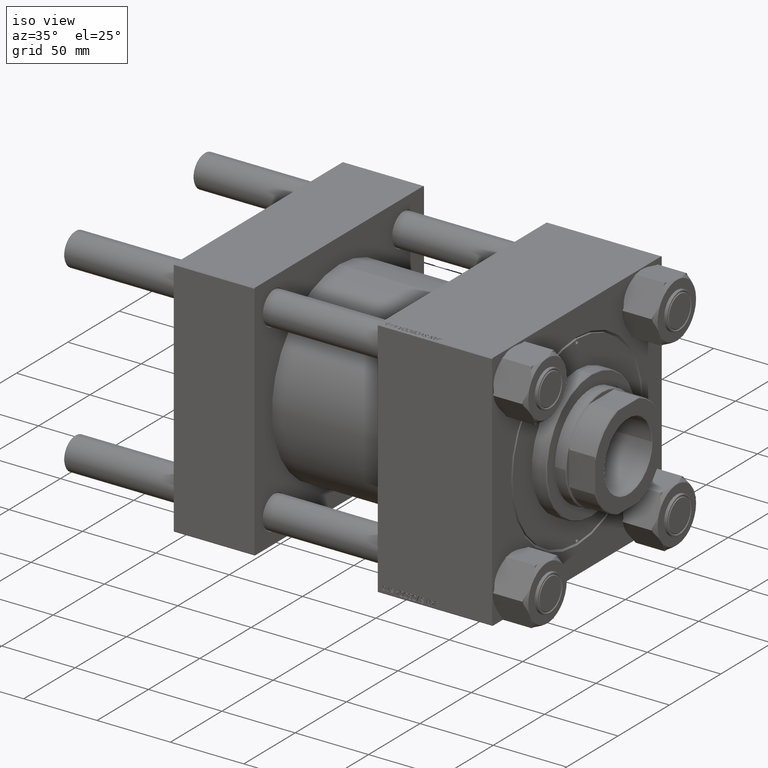
[diagram: clean part render]
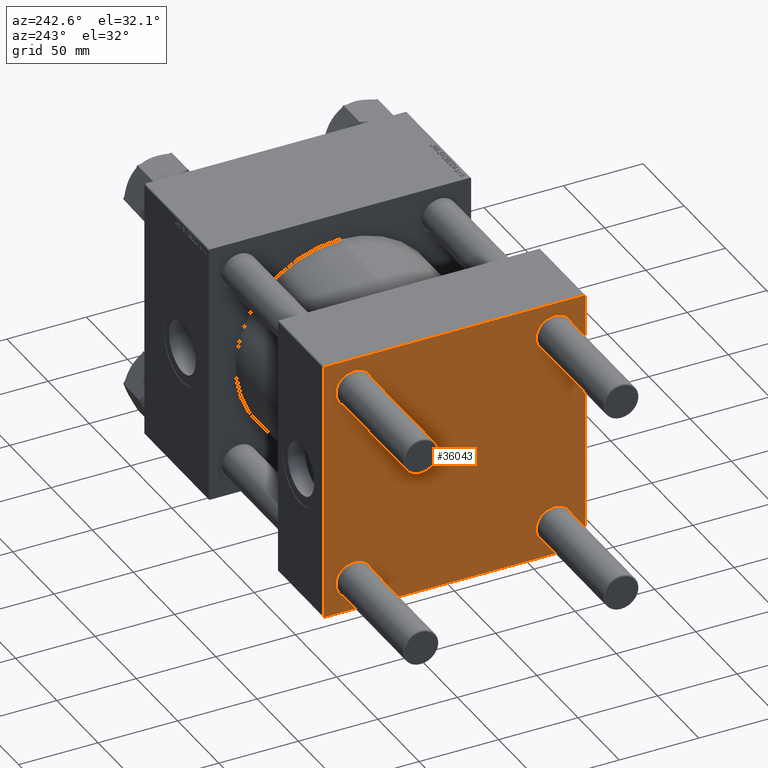
[diagram: tour spotlight — one face highlighted and labeled with its STEP entity id]
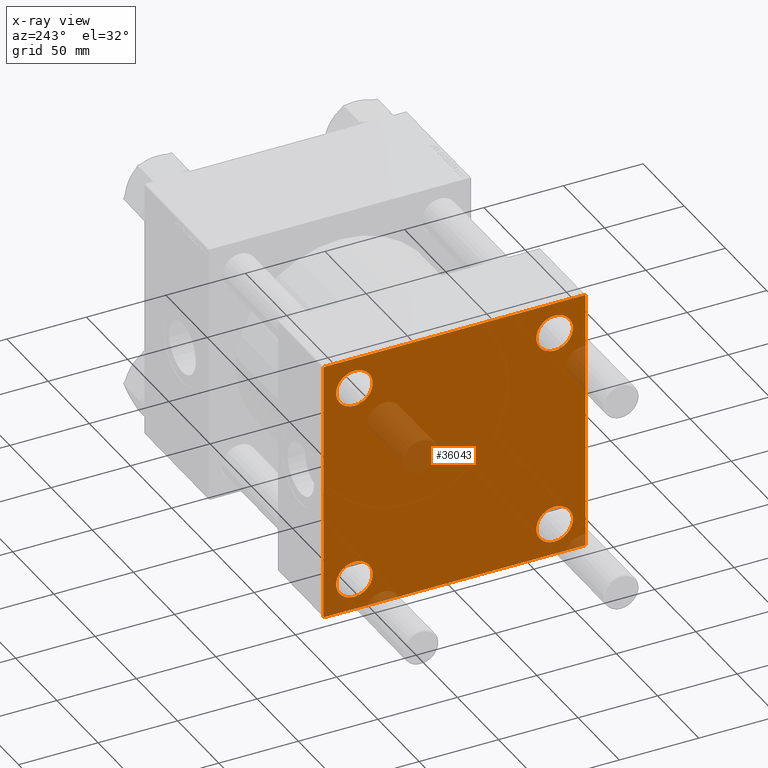
[diagram: x-ray of the same camera — body ghosted, this tour face saturated]
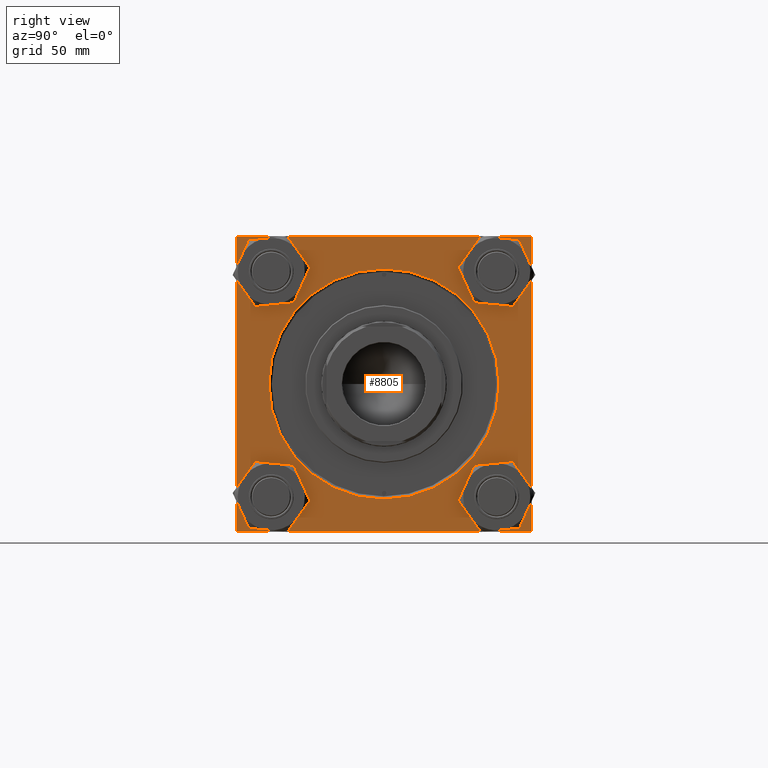
[diagram: tour spotlight — one face highlighted and labeled with its STEP entity id]
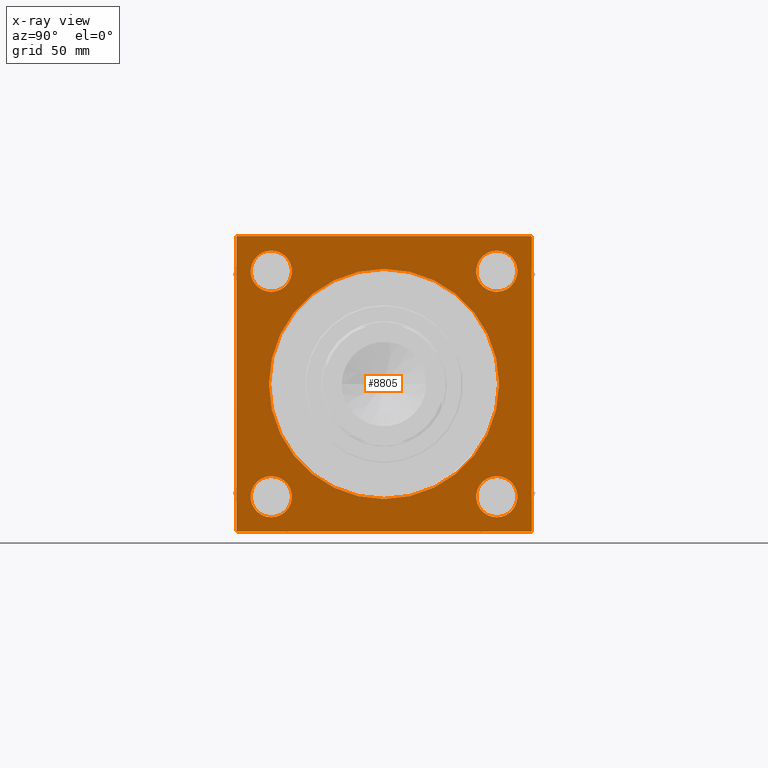
[diagram: x-ray of the same camera — body ghosted, this tour face saturated]
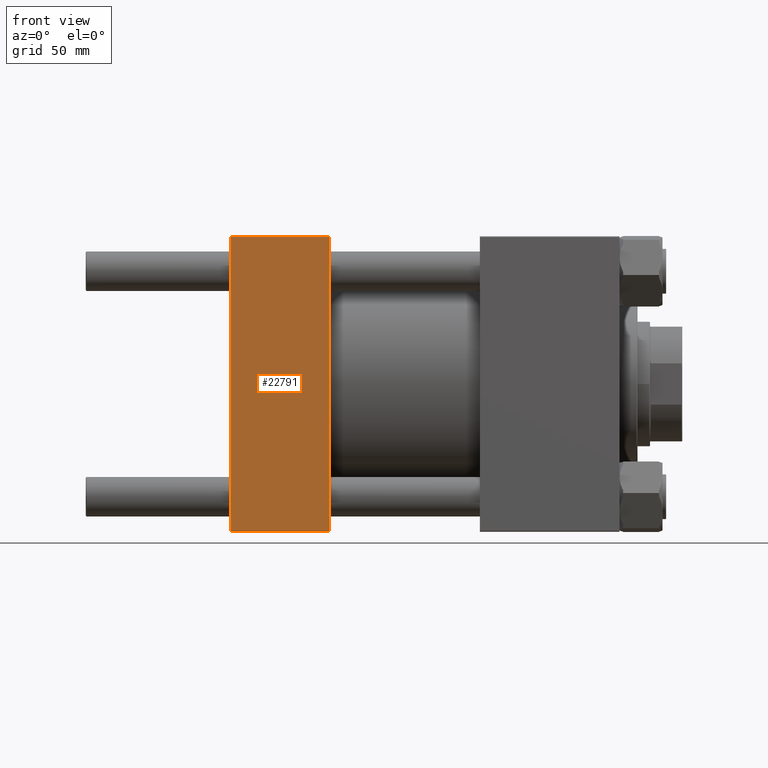
[diagram: tour spotlight — one face highlighted and labeled with its STEP entity id]
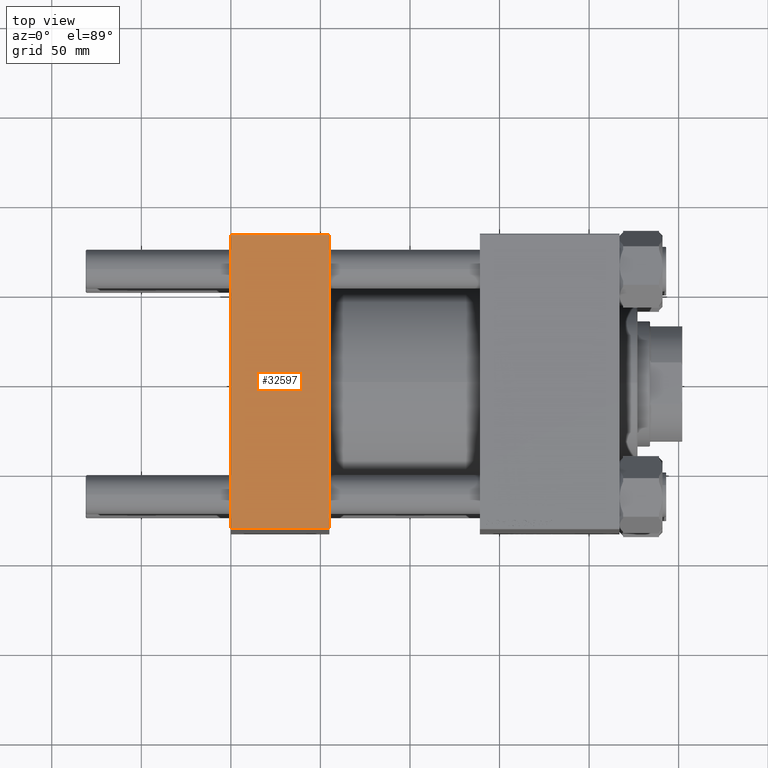
[diagram: tour spotlight — one face highlighted and labeled with its STEP entity id]
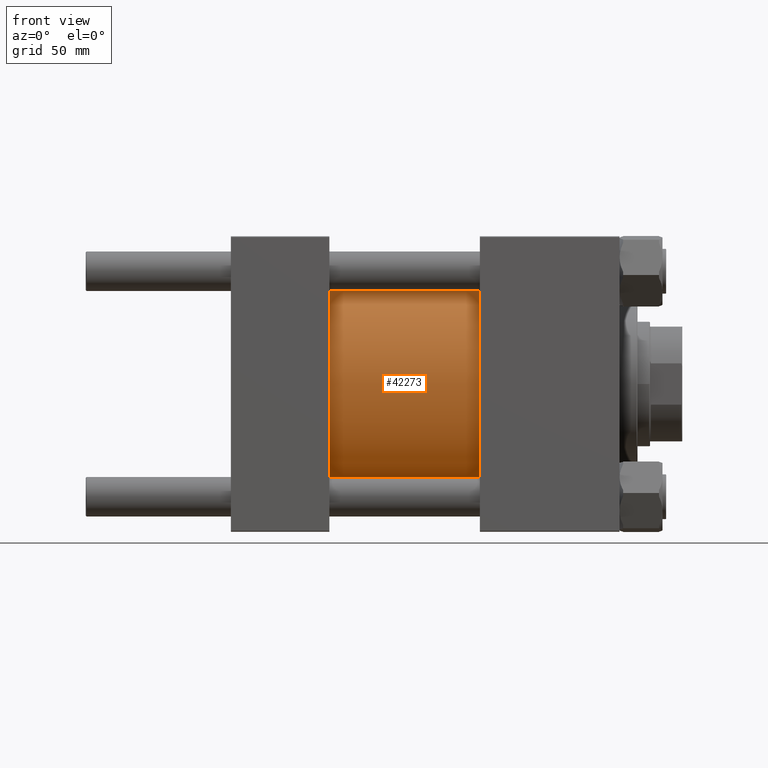
[diagram: tour spotlight — one face highlighted and labeled with its STEP entity id]
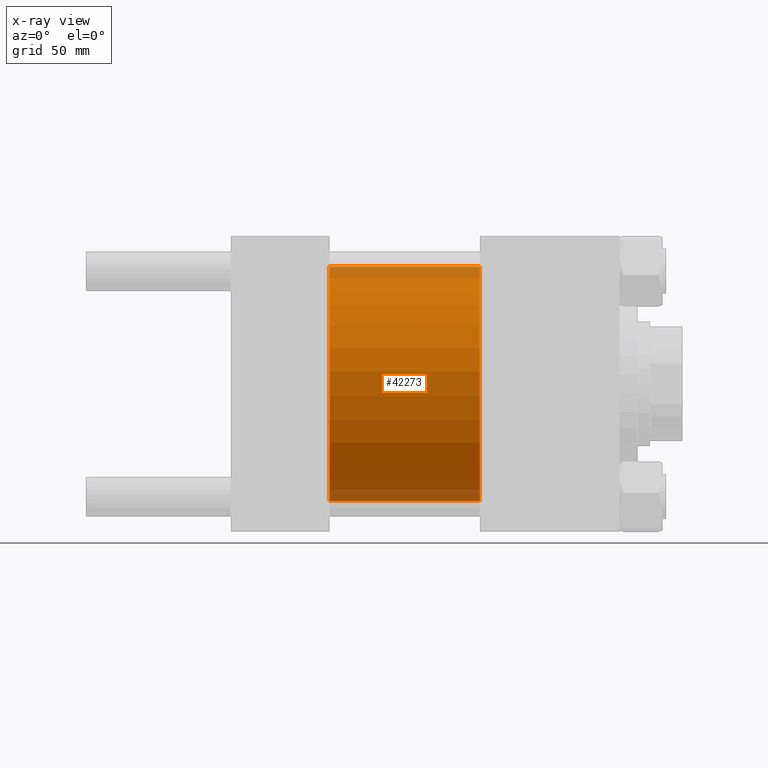
[diagram: x-ray of the same camera — body ghosted, this tour face saturated]
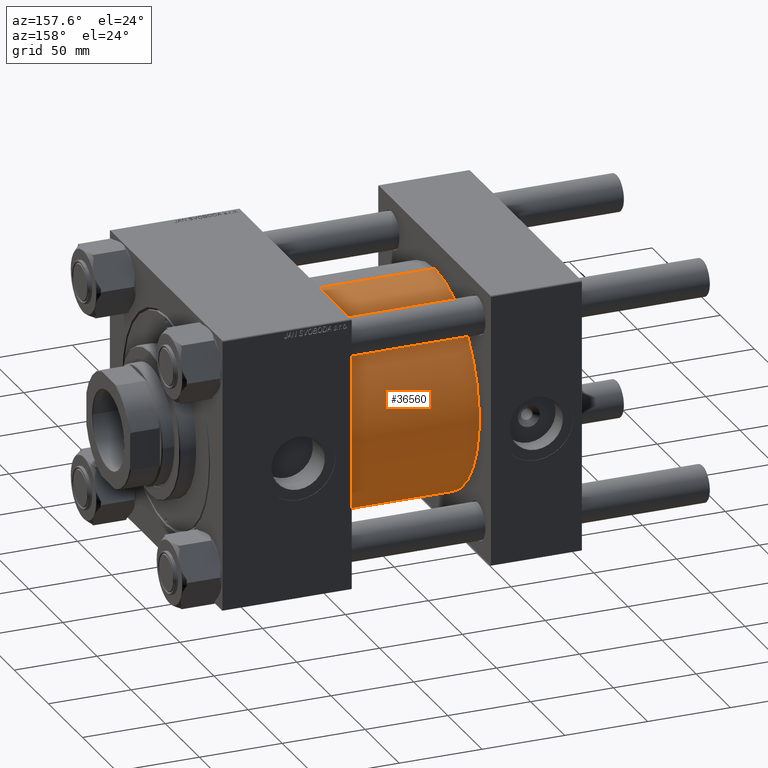
[diagram: tour spotlight — one face highlighted and labeled with its STEP entity id]
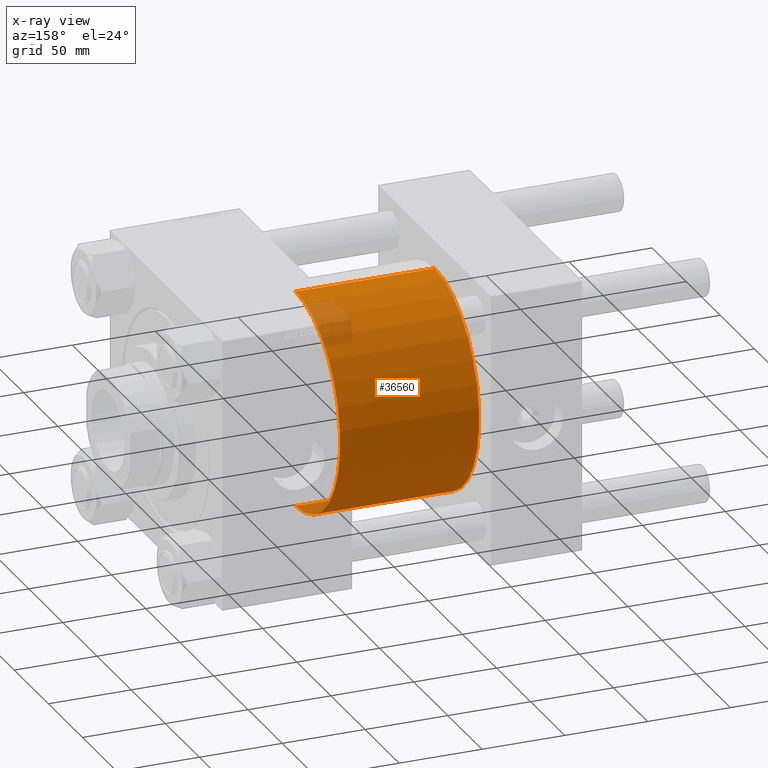
[diagram: x-ray of the same camera — body ghosted, this tour face saturated]
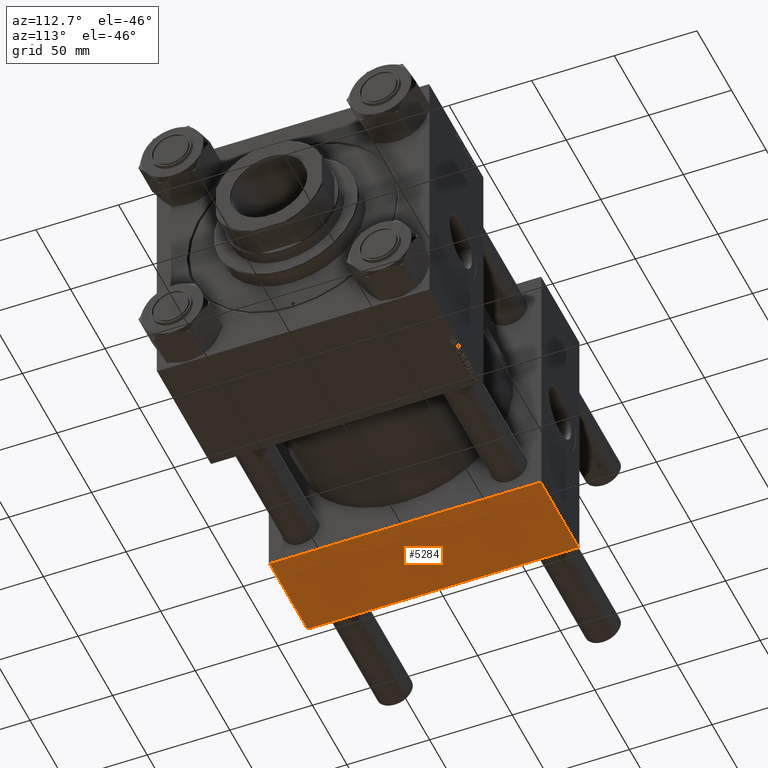
[diagram: tour spotlight — one face highlighted and labeled with its STEP entity id]
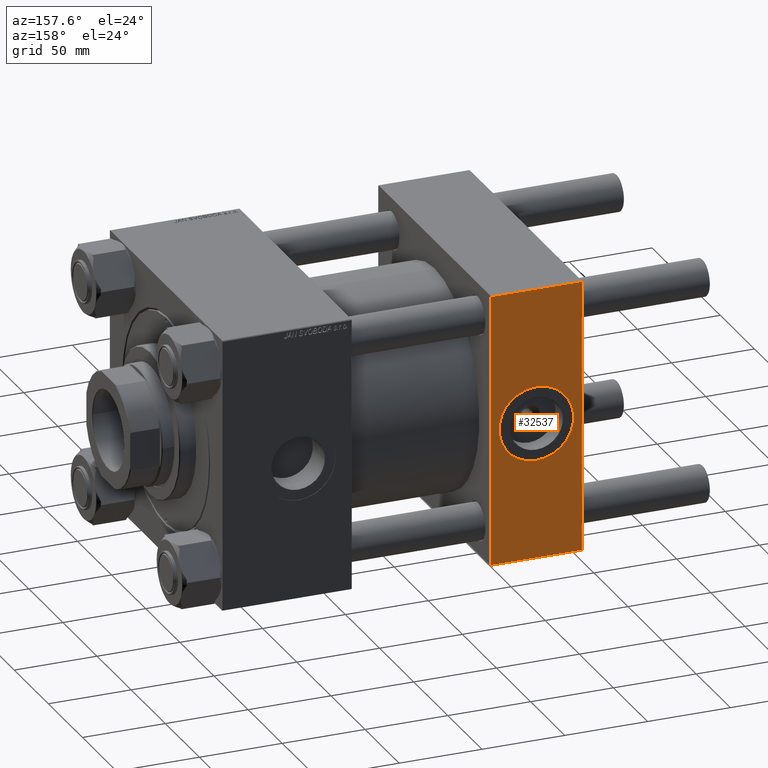
[diagram: tour spotlight — one face highlighted and labeled with its STEP entity id]
A machine part: a face-by-face anatomy tour. The part has 1188 B-rep faces; the first image is the clean iso view, then the 8 largest visible faces are spotlighted one at a time (largest first), each with its STEP entity span.

Face 1 — auxiliary view, entity #36043. An x-ray twin of the same camera follows (body ghosted, this face saturated) — the face is partly hidden behind the body. In plain terms, the highlighted planar face has unit normal (-1, 0, 0).
Definition (entity closure, byte-faithful):
#1214 = ORIENTED_EDGE ( 'NONE', *, *, #8347, .T. ) ;
#1446 = DIRECTION ( 'NONE',  ( 1.000000000000000000, -0.000000000000000000, -0.000000000000000000 ) ) ;
#1910 = CARTESIAN_POINT ( 'NONE',  ( 0.000000000000000000, -62.94999999999998153, -51.45000000000000995 ) ) ;
#1998 = DIRECTION ( 'NONE',  ( 1.000000000000000000, -0.000000000000000000, -0.000000000000000000 ) ) ;
#2589 = CARTESIAN_POINT ( 'NONE',  ( 0.000000000000000000, -62.94999999999998153, -62.95000000000001705 ) ) ;
#2924 = CARTESIAN_POINT ( 'NONE',  ( 0.000000000000000000, -62.94999999999998153, 51.45000000000000995 ) ) ;
#3281 = DIRECTION ( 'NONE',  ( 0.000000000000000000, 0.000000000000000000, 1.000000000000000000 ) ) ;
#3739 = ORIENTED_EDGE ( 'NONE', *, *, #32744, .T. ) ;
#3994 = EDGE_CURVE ( 'NONE', #21854, #22511, #24224, .T. ) ;
#4232 = VERTEX_POINT ( 'NONE', #36387 ) ;
#4570 = EDGE_CURVE ( 'NONE', #22418, #6643, #9875, .T. ) ;
#5291 = ORIENTED_EDGE ( 'NONE', *, *, #40483, .T. ) ;
#5365 = FACE_BOUND ( 'NONE', #42176, .T. ) ;
#5623 = CARTESIAN_POINT ( 'NONE',  ( 0.000000000000000000, 0.000000000000000000, 0.000000000000000000 ) ) ;
#6643 = VERTEX_POINT ( 'NONE', #1910 ) ;
#6944 = ORIENTED_EDGE ( 'NONE', *, *, #3994, .T. ) ;
#7158 = EDGE_CURVE ( 'NONE', #6643, #22418, #8310, .T. ) ;
#7211 = DIRECTION ( 'NONE',  ( 0.000000000000000000, -1.682156097916903588E-16, -1.000000000000000000 ) ) ;
#7260 = AXIS2_PLACEMENT_3D ( 'NONE', #24504, #35722, #28062 ) ;
#8250 = EDGE_CURVE ( 'NONE', #29769, #15652, #49880, .T. ) ;
#8310 = CIRCLE ( 'NONE', #18058, 11.50000000000001066 ) ;
#8347 = EDGE_CURVE ( 'NONE', #22511, #4232, #13288, .T. ) ;
#8629 = LINE ( 'NONE', #27997, #41127 ) ;
#8651 = CARTESIAN_POINT ( 'NONE',  ( 0.000000000000000000, 62.95000000000000284, -62.95000000000000284 ) ) ;
#8849 = CIRCLE ( 'NONE', #16180, 11.50000000000001066 ) ;
#9232 = VERTEX_POINT ( 'NONE', #14682 ) ;
#9336 = EDGE_CURVE ( 'NONE', #15116, #27988, #31989, .T. ) ;
#9875 = CIRCLE ( 'NONE', #16409, 11.50000000000001066 ) ;
#9928 = ORIENTED_EDGE ( 'NONE', *, *, #26298, .F. ) ;
#9930 = CARTESIAN_POINT ( 'NONE',  ( 0.000000000000000000, 62.95000000000000284, 62.95000000000000284 ) ) ;
#10330 = VERTEX_POINT ( 'NONE', #18075 ) ;
#10477 = ORIENTED_EDGE ( 'NONE', *, *, #4570, .T. ) ;
#10790 = LINE ( 'NONE', #34742, #38770 ) ;
#11113 = DIRECTION ( 'NONE',  ( 1.000000000000000000, -0.000000000000000000, -0.000000000000000000 ) ) ;
#11631 = DIRECTION ( 'NONE',  ( 1.000000000000000000, -0.000000000000000000, -0.000000000000000000 ) ) ;
#11895 = VERTEX_POINT ( 'NONE', #29440 ) ;
#12050 = CARTESIAN_POINT ( 'NONE',  ( 0.000000000000000000, 82.00000000000005684, 82.50000000000002842 ) ) ;
#12191 = DIRECTION ( 'NONE',  ( -0.000000000000000000, -0.7071067811865474617, -0.7071067811865474617 ) ) ;
#12784 = ORIENTED_EDGE ( 'NONE', *, *, #20898, .T. ) ;
#13288 = LINE ( 'NONE', #47215, #49111 ) ;
#13289 = FACE_OUTER_BOUND ( 'NONE', #45656, .T. ) ;
#13500 = DIRECTION ( 'NONE',  ( 0.000000000000000000, 0.7071067811865474617, -0.7071067811865474617 ) ) ;
#14682 = CARTESIAN_POINT ( 'NONE',  ( 0.000000000000000000, 62.95000000000000284, 51.44999999999999574 ) ) ;
#15092 = CARTESIAN_POINT ( 'NONE',  ( 0.000000000000000000, 62.95000000000000284, -74.45000000000001705 ) ) ;
#15116 = VERTEX_POINT ( 'NONE', #19452 ) ;
#15366 = EDGE_LOOP ( 'NONE', ( #33849, #10477 ) ) ;
#15652 = VERTEX_POINT ( 'NONE', #2924 ) ;
#16180 = AXIS2_PLACEMENT_3D ( 'NONE', #38162, #11631, #38421 ) ;
#16307 = VERTEX_POINT ( 'NONE', #49670 ) ;
#16409 = AXIS2_PLACEMENT_3D ( 'NONE', #22844, #11113, #27158 ) ;
#17062 = ORIENTED_EDGE ( 'NONE', *, *, #45441, .T. ) ;
#17553 = DIRECTION ( 'NONE',  ( 0.000000000000000000, 0.000000000000000000, 1.000000000000000000 ) ) ;
#18058 = AXIS2_PLACEMENT_3D ( 'NONE', #2589, #29131, #49284 ) ;
#18075 = CARTESIAN_POINT ( 'NONE',  ( 0.000000000000000000, -81.99999999999997158, 82.50000000000001421 ) ) ;
#19143 = VERTEX_POINT ( 'NONE', #46018 ) ;
#19452 = CARTESIAN_POINT ( 'NONE',  ( 0.000000000000000000, -82.00000000000000000, -82.50000000000000000 ) ) ;
#19805 = EDGE_CURVE ( 'NONE', #11895, #25764, #19935, .T. ) ;
#19935 = CIRCLE ( 'NONE', #34585, 11.50000000000001066 ) ;
#20263 = CARTESIAN_POINT ( 'NONE',  ( 0.000000000000000000, -82.25000000000115108, -82.24999999999886313 ) ) ;
#20310 = VECTOR ( 'NONE', #41319, 1000.000000000000000 ) ;
#20898 = EDGE_CURVE ( 'NONE', #15652, #29769, #40317, .T. ) ;
#20945 = FACE_BOUND ( 'NONE', #36845, .T. ) ;
#21275 = VERTEX_POINT ( 'NONE', #49001 ) ;
#21408 = CARTESIAN_POINT ( 'NONE',  ( 0.000000000000000000, 82.25000000000002842, 82.25000000000002842 ) ) ;
#21718 = LINE ( 'NONE', #37771, #48636 ) ;
#21854 = VERTEX_POINT ( 'NONE', #12050 ) ;
#22389 = EDGE_CURVE ( 'NONE', #9232, #21275, #49340, .T. ) ;
#22418 = VERTEX_POINT ( 'NONE', #50435 ) ;
#22511 = VERTEX_POINT ( 'NONE', #42292 ) ;
#22844 = CARTESIAN_POINT ( 'NONE',  ( 0.000000000000000000, -62.94999999999998153, -62.95000000000001705 ) ) ;
#23030 = LINE ( 'NONE', #45982, #44820 ) ;
#23430 = EDGE_CURVE ( 'NONE', #4232, #19143, #8629, .T. ) ;
#24224 = LINE ( 'NONE', #21408, #39175 ) ;
#24265 = DIRECTION ( 'NONE',  ( 1.000000000000000000, -0.000000000000000000, -0.000000000000000000 ) ) ;
#24504 = CARTESIAN_POINT ( 'NONE',  ( 0.000000000000000000, 62.95000000000000284, 62.95000000000000284 ) ) ;
#24769 = FACE_BOUND ( 'NONE', #15366, .T. ) ;
#25172 = CIRCLE ( 'NONE', #7260, 11.50000000000001066 ) ;
#25489 = DIRECTION ( 'NONE',  ( 0.000000000000000000, 0.000000000000000000, 1.000000000000000000 ) ) ;
#25758 = CARTESIAN_POINT ( 'NONE',  ( 0.000000000000000000, 82.50000000000002842, 82.50000000000002842 ) ) ;
#25764 = VERTEX_POINT ( 'NONE', #15092 ) ;
#26298 = EDGE_CURVE ( 'NONE', #16307, #27988, #10790, .T. ) ;
#26838 = CARTESIAN_POINT ( 'NONE',  ( 0.000000000000000000, -62.94999999999998153, 62.95000000000001705 ) ) ;
#27158 = DIRECTION ( 'NONE',  ( 0.000000000000000000, 0.000000000000000000, 1.000000000000000000 ) ) ;
#27432 = ORIENTED_EDGE ( 'NONE', *, *, #19805, .T. ) ;
#27646 = DIRECTION ( 'NONE',  ( 0.000000000000000000, -0.7071067811865376918, 0.7071067811865574537 ) ) ;
#27988 = VERTEX_POINT ( 'NONE', #44539 ) ;
#27997 = CARTESIAN_POINT ( 'NONE',  ( 0.000000000000000000, 82.25000000000001421, -82.25000000000001421 ) ) ;
#28062 = DIRECTION ( 'NONE',  ( 0.000000000000000000, 0.000000000000000000, 1.000000000000000000 ) ) ;
#28290 = ORIENTED_EDGE ( 'NONE', *, *, #8250, .T. ) ;
#28828 = DIRECTION ( 'NONE',  ( 0.000000000000000000, 0.000000000000000000, -1.000000000000000000 ) ) ;
#28829 = PLANE ( 'NONE',  #34894 ) ;
#29131 = DIRECTION ( 'NONE',  ( 1.000000000000000000, -0.000000000000000000, -0.000000000000000000 ) ) ;
#29440 = CARTESIAN_POINT ( 'NONE',  ( 0.000000000000000000, 62.95000000000000284, -51.44999999999999574 ) ) ;
#29589 = LINE ( 'NONE', #25758, #20310 ) ;
#29769 = VERTEX_POINT ( 'NONE', #45232 ) ;
#29786 = AXIS2_PLACEMENT_3D ( 'NONE', #9930, #1998, #25489 ) ;
#30077 = EDGE_CURVE ( 'NONE', #16307, #10330, #21718, .T. ) ;
#30085 = DIRECTION ( 'NONE',  ( -1.000000000000000000, 0.000000000000000000, 0.000000000000000000 ) ) ;
#31989 = LINE ( 'NONE', #20263, #39322 ) ;
#32667 = DIRECTION ( 'NONE',  ( 0.000000000000000000, 0.000000000000000000, 1.000000000000000000 ) ) ;
#32744 = EDGE_CURVE ( 'NONE', #25764, #11895, #8849, .T. ) ;
#33849 = ORIENTED_EDGE ( 'NONE', *, *, #7158, .T. ) ;
#34494 = DIRECTION ( 'NONE',  ( 1.000000000000000000, -0.000000000000000000, -0.000000000000000000 ) ) ;
#34585 = AXIS2_PLACEMENT_3D ( 'NONE', #8651, #1446, #17553 ) ;
#34742 = CARTESIAN_POINT ( 'NONE',  ( 0.000000000000000000, -82.49999999999997158, 82.50000000000001421 ) ) ;
#34894 = AXIS2_PLACEMENT_3D ( 'NONE', #5623, #30085, #3281 ) ;
#35722 = DIRECTION ( 'NONE',  ( 1.000000000000000000, -0.000000000000000000, -0.000000000000000000 ) ) ;
#36043 = ADVANCED_FACE ( 'NONE', ( #44656, #24769, #5365, #20945, #13289 ), #28829, .T. ) ;
#36387 = CARTESIAN_POINT ( 'NONE',  ( 0.000000000000000000, 82.50000000000002842, -82.00000000000000000 ) ) ;
#36845 = EDGE_LOOP ( 'NONE', ( #17062, #48758 ) ) ;
#36928 = ORIENTED_EDGE ( 'NONE', *, *, #9336, .T. ) ;
#37500 = ORIENTED_EDGE ( 'NONE', *, *, #30077, .T. ) ;
#37771 = CARTESIAN_POINT ( 'NONE',  ( 0.000000000000000000, -82.25000000000000000, 82.25000000000000000 ) ) ;
#38162 = CARTESIAN_POINT ( 'NONE',  ( 0.000000000000000000, 62.95000000000000284, -62.95000000000000284 ) ) ;
#38421 = DIRECTION ( 'NONE',  ( 0.000000000000000000, 0.000000000000000000, 1.000000000000000000 ) ) ;
#38770 = VECTOR ( 'NONE', #7211, 1000.000000000000000 ) ;
#39175 = VECTOR ( 'NONE', #13500, 1000.000000000000114 ) ;
#39291 = AXIS2_PLACEMENT_3D ( 'NONE', #44161, #24265, #32667 ) ;
#39322 = VECTOR ( 'NONE', #27646, 999.9999999999998863 ) ;
#39354 = ORIENTED_EDGE ( 'NONE', *, *, #45613, .F. ) ;
#39517 = ORIENTED_EDGE ( 'NONE', *, *, #23430, .T. ) ;
#40317 = CIRCLE ( 'NONE', #46823, 11.50000000000001066 ) ;
#40483 = EDGE_CURVE ( 'NONE', #19143, #15116, #23030, .T. ) ;
#41127 = VECTOR ( 'NONE', #12191, 1000.000000000000114 ) ;
#41319 = DIRECTION ( 'NONE',  ( 0.000000000000000000, -1.000000000000000000, -8.410780489584519171E-17 ) ) ;
#42176 = EDGE_LOOP ( 'NONE', ( #27432, #3739 ) ) ;
#42292 = CARTESIAN_POINT ( 'NONE',  ( 0.000000000000000000, 82.50000000000002842, 82.00000000000005684 ) ) ;
#42666 = DIRECTION ( 'NONE',  ( 0.000000000000000000, 0.000000000000000000, 1.000000000000000000 ) ) ;
#42668 = DIRECTION ( 'NONE',  ( 0.000000000000000000, -1.000000000000000000, -1.682156097916903588E-16 ) ) ;
#44161 = CARTESIAN_POINT ( 'NONE',  ( 0.000000000000000000, -62.94999999999998153, 62.95000000000001705 ) ) ;
#44539 = CARTESIAN_POINT ( 'NONE',  ( 0.000000000000000000, -82.50000000000000000, -81.99999999999998579 ) ) ;
#44656 = FACE_BOUND ( 'NONE', #47004, .T. ) ;
#44820 = VECTOR ( 'NONE', #42668, 1000.000000000000000 ) ;
#45232 = CARTESIAN_POINT ( 'NONE',  ( 0.000000000000000000, -62.94999999999998153, 74.45000000000003126 ) ) ;
#45441 = EDGE_CURVE ( 'NONE', #21275, #9232, #25172, .T. ) ;
#45613 = EDGE_CURVE ( 'NONE', #21854, #10330, #29589, .T. ) ;
#45656 = EDGE_LOOP ( 'NONE', ( #1214, #39517, #5291, #36928, #9928, #37500, #39354, #6944 ) ) ;
#45982 = CARTESIAN_POINT ( 'NONE',  ( 0.000000000000000000, 82.50000000000002842, -82.49999999999997158 ) ) ;
#46018 = CARTESIAN_POINT ( 'NONE',  ( 0.000000000000000000, 82.00000000000005684, -82.49999999999997158 ) ) ;
#46823 = AXIS2_PLACEMENT_3D ( 'NONE', #26838, #34494, #42666 ) ;
#47004 = EDGE_LOOP ( 'NONE', ( #28290, #12784 ) ) ;
#47215 = CARTESIAN_POINT ( 'NONE',  ( 0.000000000000000000, 82.50000000000002842, 82.50000000000002842 ) ) ;
#48636 = VECTOR ( 'NONE', #49738, 1000.000000000000114 ) ;
#48758 = ORIENTED_EDGE ( 'NONE', *, *, #22389, .T. ) ;
#49001 = CARTESIAN_POINT ( 'NONE',  ( 0.000000000000000000, 62.95000000000000284, 74.45000000000001705 ) ) ;
#49111 = VECTOR ( 'NONE', #28828, 1000.000000000000000 ) ;
#49284 = DIRECTION ( 'NONE',  ( 0.000000000000000000, 0.000000000000000000, 1.000000000000000000 ) ) ;
#49340 = CIRCLE ( 'NONE', #29786, 11.50000000000001066 ) ;
#49670 = CARTESIAN_POINT ( 'NONE',  ( 0.000000000000000000, -82.49999999999997158, 82.00000000000001421 ) ) ;
#49738 = DIRECTION ( 'NONE',  ( -0.000000000000000000, 0.7071067811865474617, 0.7071067811865474617 ) ) ;
#49880 = CIRCLE ( 'NONE', #39291, 11.50000000000001066 ) ;
#50435 = CARTESIAN_POINT ( 'NONE',  ( 0.000000000000000000, -62.94999999999998153, -74.45000000000003126 ) ) ;

Face 2 — right view, entity #8805. An x-ray twin of the same camera follows (body ghosted, this face saturated) — the face is partly hidden behind the body. In plain terms, the highlighted planar face has unit normal (-1, 0, 0).
Definition (entity closure, byte-faithful):
#385 = EDGE_LOOP ( 'NONE', ( #46397, #28254 ) ) ;
#891 = VERTEX_POINT ( 'NONE', #30306 ) ;
#1349 = ORIENTED_EDGE ( 'NONE', *, *, #43650, .T. ) ;
#1423 = DIRECTION ( 'NONE',  ( -1.000000000000000000, -0.000000000000000000, 0.000000000000000000 ) ) ;
#1526 = CARTESIAN_POINT ( 'NONE',  ( 217.0000000000000284, 82.00000000000004263, 82.50000000000000000 ) ) ;
#2471 = CIRCLE ( 'NONE', #21219, 11.49999999999995381 ) ;
#3209 = DIRECTION ( 'NONE',  ( 0.000000000000000000, 0.000000000000000000, 1.000000000000000000 ) ) ;
#3789 = VECTOR ( 'NONE', #17009, 1000.000000000000114 ) ;
#4139 = CARTESIAN_POINT ( 'NONE',  ( 217.0000000000000284, -82.49999999999997158, 82.49999999999997158 ) ) ;
#4712 = CARTESIAN_POINT ( 'NONE',  ( 217.0000000000000284, -62.94999999999998153, -51.45000000000006679 ) ) ;
#5385 = CARTESIAN_POINT ( 'NONE',  ( 217.0000000000000284, -82.49999999999997158, 81.99999999999991473 ) ) ;
#5480 = ORIENTED_EDGE ( 'NONE', *, *, #43207, .T. ) ;
#5530 = CARTESIAN_POINT ( 'NONE',  ( 217.0000000000000284, 0.000000000000000000, 0.000000000000000000 ) ) ;
#5641 = EDGE_CURVE ( 'NONE', #23947, #18037, #49803, .T. ) ;
#5953 = DIRECTION ( 'NONE',  ( -1.000000000000000000, -0.000000000000000000, 0.000000000000000000 ) ) ;
#6001 = EDGE_CURVE ( 'NONE', #32919, #34883, #19662, .T. ) ;
#6049 = DIRECTION ( 'NONE',  ( 0.000000000000000000, 0.000000000000000000, 1.000000000000000000 ) ) ;
#6282 = CARTESIAN_POINT ( 'NONE',  ( 217.0000000000000284, -62.94999999999998153, 51.45000000000006679 ) ) ;
#6717 = CARTESIAN_POINT ( 'NONE',  ( 217.0000000000000284, 82.50000000000001421, -82.00000000000005684 ) ) ;
#7061 = VECTOR ( 'NONE', #10354, 1000.000000000000114 ) ;
#7562 = VERTEX_POINT ( 'NONE', #43834 ) ;
#7691 = EDGE_CURVE ( 'NONE', #44359, #27163, #49082, .T. ) ;
#7870 = EDGE_CURVE ( 'NONE', #18037, #23947, #37657, .T. ) ;
#7986 = LINE ( 'NONE', #4139, #39994 ) ;
#8655 = LINE ( 'NONE', #39759, #8752 ) ;
#8752 = VECTOR ( 'NONE', #24206, 1000.000000000000000 ) ;
#8805 = ADVANCED_FACE ( 'NONE', ( #44847, #9899, #25459, #37696, #48915, #29534 ), #45102, .F. ) ;
#9185 = AXIS2_PLACEMENT_3D ( 'NONE', #25706, #49166, #14243 ) ;
#9694 = CARTESIAN_POINT ( 'NONE',  ( 217.0000000000000284, 62.95000000000000284, 74.44999999999996021 ) ) ;
#9723 = LINE ( 'NONE', #1526, #45604 ) ;
#9899 = FACE_BOUND ( 'NONE', #14887, .T. ) ;
#10354 = DIRECTION ( 'NONE',  ( -0.000000000000000000, -0.7071067811865573427, -0.7071067811865376918 ) ) ;
#11121 = DIRECTION ( 'NONE',  ( -1.000000000000000000, -0.000000000000000000, 0.000000000000000000 ) ) ;
#11322 = ORIENTED_EDGE ( 'NONE', *, *, #7691, .T. ) ;
#12223 = EDGE_LOOP ( 'NONE', ( #11322, #5480 ) ) ;
#12676 = LINE ( 'NONE', #16522, #7061 ) ;
#14243 = DIRECTION ( 'NONE',  ( 0.000000000000000000, 0.000000000000000000, 1.000000000000000000 ) ) ;
#14336 = CIRCLE ( 'NONE', #31381, 11.49999999999995381 ) ;
#14372 = DIRECTION ( 'NONE',  ( 0.000000000000000000, 0.000000000000000000, 1.000000000000000000 ) ) ;
#14887 = EDGE_LOOP ( 'NONE', ( #1349, #36934 ) ) ;
#15017 = VERTEX_POINT ( 'NONE', #41186 ) ;
#15172 = DIRECTION ( 'NONE',  ( 0.000000000000000000, 0.000000000000000000, 1.000000000000000000 ) ) ;
#16522 = CARTESIAN_POINT ( 'NONE',  ( 217.0000000000000284, -82.49999999999997158, 81.99999999999991473 ) ) ;
#17009 = DIRECTION ( 'NONE',  ( -0.000000000000000000, 0.7071067811865474617, 0.7071067811865474617 ) ) ;
#17523 = DIRECTION ( 'NONE',  ( 0.000000000000000000, 0.7071067811865376918, -0.7071067811865574537 ) ) ;
#17791 = CARTESIAN_POINT ( 'NONE',  ( 217.0000000000000284, -62.94999999999998153, 62.95000000000001705 ) ) ;
#17869 = CARTESIAN_POINT ( 'NONE',  ( 217.0000000000000284, 82.50000000000001421, -82.50000000000002842 ) ) ;
#18026 = EDGE_CURVE ( 'NONE', #39933, #38373, #36644, .T. ) ;
#18037 = VERTEX_POINT ( 'NONE', #6282 ) ;
#18048 = CARTESIAN_POINT ( 'NONE',  ( 217.0000000000000284, 0.000000000000000000, 0.000000000000000000 ) ) ;
#18170 = EDGE_CURVE ( 'NONE', #34883, #32919, #41882, .T. ) ;
#19296 = DIRECTION ( 'NONE',  ( -1.000000000000000000, -0.000000000000000000, 0.000000000000000000 ) ) ;
#19662 = CIRCLE ( 'NONE', #35981, 11.49999999999995381 ) ;
#19896 = AXIS2_PLACEMENT_3D ( 'NONE', #34325, #11121, #49884 ) ;
#20402 = EDGE_CURVE ( 'NONE', #25122, #38373, #40080, .T. ) ;
#20489 = ORIENTED_EDGE ( 'NONE', *, *, #46979, .T. ) ;
#20772 = ORIENTED_EDGE ( 'NONE', *, *, #18026, .T. ) ;
#20924 = DIRECTION ( 'NONE',  ( -1.000000000000000000, -0.000000000000000000, 0.000000000000000000 ) ) ;
#21082 = VERTEX_POINT ( 'NONE', #5385 ) ;
#21100 = DIRECTION ( 'NONE',  ( -1.000000000000000000, -0.000000000000000000, 0.000000000000000000 ) ) ;
#21219 = AXIS2_PLACEMENT_3D ( 'NONE', #40810, #20924, #33397 ) ;
#21716 = DIRECTION ( 'NONE',  ( 0.000000000000000000, -0.7071067811865474617, 0.7071067811865474617 ) ) ;
#21958 = ORIENTED_EDGE ( 'NONE', *, *, #28815, .T. ) ;
#22051 = EDGE_CURVE ( 'NONE', #44719, #47308, #14336, .T. ) ;
#22143 = EDGE_LOOP ( 'NONE', ( #29922, #34341 ) ) ;
#22391 = ORIENTED_EDGE ( 'NONE', *, *, #48816, .T. ) ;
#23604 = CARTESIAN_POINT ( 'NONE',  ( 217.0000000000000284, -82.50000000000000000, -82.00000000000005684 ) ) ;
#23947 = VERTEX_POINT ( 'NONE', #49499 ) ;
#24206 = DIRECTION ( 'NONE',  ( 0.000000000000000000, -1.000000000000000000, -1.682156097916904081E-16 ) ) ;
#24428 = CARTESIAN_POINT ( 'NONE',  ( 217.0000000000000284, 62.95000000000000284, -62.95000000000000284 ) ) ;
#24948 = DIRECTION ( 'NONE',  ( 0.000000000000000000, 0.000000000000000000, 1.000000000000000000 ) ) ;
#25122 = VERTEX_POINT ( 'NONE', #40734 ) ;
#25209 = CIRCLE ( 'NONE', #36604, 11.49999999999995381 ) ;
#25382 = AXIS2_PLACEMENT_3D ( 'NONE', #17791, #44584, #37182 ) ;
#25459 = FACE_BOUND ( 'NONE', #39196, .T. ) ;
#25610 = CARTESIAN_POINT ( 'NONE',  ( 217.0000000000000284, 82.50000000000001421, 82.50000000000000000 ) ) ;
#25706 = CARTESIAN_POINT ( 'NONE',  ( 217.0000000000000284, 0.000000000000000000, 0.000000000000000000 ) ) ;
#26175 = CIRCLE ( 'NONE', #38369, 64.24999999999997158 ) ;
#27163 = VERTEX_POINT ( 'NONE', #29848 ) ;
#28254 = ORIENTED_EDGE ( 'NONE', *, *, #6001, .T. ) ;
#28700 = EDGE_CURVE ( 'NONE', #25122, #47970, #40217, .T. ) ;
#28815 = EDGE_CURVE ( 'NONE', #15017, #21082, #12676, .T. ) ;
#29416 = EDGE_CURVE ( 'NONE', #891, #15017, #8655, .T. ) ;
#29534 = FACE_OUTER_BOUND ( 'NONE', #40252, .T. ) ;
#29848 = CARTESIAN_POINT ( 'NONE',  ( 217.0000000000000284, 7.868355684521741158E-15, 64.24999999999997158 ) ) ;
#29922 = ORIENTED_EDGE ( 'NONE', *, *, #7870, .T. ) ;
#30306 = CARTESIAN_POINT ( 'NONE',  ( 217.0000000000000284, 82.00000000000004263, 82.50000000000000000 ) ) ;
#31288 = ORIENTED_EDGE ( 'NONE', *, *, #28700, .T. ) ;
#31381 = AXIS2_PLACEMENT_3D ( 'NONE', #48747, #40602, #41361 ) ;
#31711 = CARTESIAN_POINT ( 'NONE',  ( 217.0000000000000284, -62.94999999999998153, -74.44999999999997442 ) ) ;
#31974 = EDGE_CURVE ( 'NONE', #7562, #47970, #40661, .T. ) ;
#32565 = CARTESIAN_POINT ( 'NONE',  ( 217.0000000000000284, -82.00000000000004263, -82.50000000000002842 ) ) ;
#32919 = VERTEX_POINT ( 'NONE', #4712 ) ;
#33397 = DIRECTION ( 'NONE',  ( 0.000000000000000000, 0.000000000000000000, 1.000000000000000000 ) ) ;
#33512 = DIRECTION ( 'NONE',  ( 0.000000000000000000, 0.000000000000000000, -1.000000000000000000 ) ) ;
#33865 = VERTEX_POINT ( 'NONE', #36865 ) ;
#34037 = CARTESIAN_POINT ( 'NONE',  ( 217.0000000000000284, -62.94999999999998153, -62.95000000000001705 ) ) ;
#34239 = ORIENTED_EDGE ( 'NONE', *, *, #49554, .T. ) ;
#34325 = CARTESIAN_POINT ( 'NONE',  ( 217.0000000000000284, -62.94999999999998153, -62.95000000000001705 ) ) ;
#34341 = ORIENTED_EDGE ( 'NONE', *, *, #5641, .T. ) ;
#34859 = VECTOR ( 'NONE', #33512, 1000.000000000000000 ) ;
#34882 = AXIS2_PLACEMENT_3D ( 'NONE', #24428, #1423, #44069 ) ;
#34883 = VERTEX_POINT ( 'NONE', #31711 ) ;
#35206 = AXIS2_PLACEMENT_3D ( 'NONE', #42259, #19296, #3209 ) ;
#35279 = DIRECTION ( 'NONE',  ( 0.000000000000000000, -1.682156097916903834E-16, -1.000000000000000000 ) ) ;
#35374 = CARTESIAN_POINT ( 'NONE',  ( 217.0000000000000284, 82.50000000000001421, -82.00000000000005684 ) ) ;
#35981 = AXIS2_PLACEMENT_3D ( 'NONE', #34037, #42956, #15172 ) ;
#36604 = AXIS2_PLACEMENT_3D ( 'NONE', #37321, #5953, #14372 ) ;
#36644 = LINE ( 'NONE', #32565, #41850 ) ;
#36865 = CARTESIAN_POINT ( 'NONE',  ( 217.0000000000000284, 62.95000000000000284, -51.45000000000005258 ) ) ;
#36934 = ORIENTED_EDGE ( 'NONE', *, *, #46671, .T. ) ;
#37182 = DIRECTION ( 'NONE',  ( 0.000000000000000000, 0.000000000000000000, 1.000000000000000000 ) ) ;
#37321 = CARTESIAN_POINT ( 'NONE',  ( 217.0000000000000284, 62.95000000000000284, -62.95000000000000284 ) ) ;
#37533 = ORIENTED_EDGE ( 'NONE', *, *, #29416, .T. ) ;
#37657 = CIRCLE ( 'NONE', #35206, 11.49999999999995381 ) ;
#37696 = FACE_BOUND ( 'NONE', #22143, .T. ) ;
#38369 = AXIS2_PLACEMENT_3D ( 'NONE', #5530, #21100, #6049 ) ;
#38373 = VERTEX_POINT ( 'NONE', #42288 ) ;
#39196 = EDGE_LOOP ( 'NONE', ( #22391, #44768 ) ) ;
#39759 = CARTESIAN_POINT ( 'NONE',  ( 217.0000000000000284, 82.50000000000001421, 82.50000000000000000 ) ) ;
#39933 = VERTEX_POINT ( 'NONE', #23604 ) ;
#39994 = VECTOR ( 'NONE', #35279, 1000.000000000000000 ) ;
#40080 = LINE ( 'NONE', #17869, #42758 ) ;
#40217 = LINE ( 'NONE', #35374, #3789 ) ;
#40252 = EDGE_LOOP ( 'NONE', ( #34239, #20772, #49385, #31288, #46453, #20489, #37533, #21958 ) ) ;
#40602 = DIRECTION ( 'NONE',  ( -1.000000000000000000, -0.000000000000000000, 0.000000000000000000 ) ) ;
#40661 = LINE ( 'NONE', #25610, #34859 ) ;
#40734 = CARTESIAN_POINT ( 'NONE',  ( 217.0000000000000284, 82.00000000000004263, -82.50000000000002842 ) ) ;
#40810 = CARTESIAN_POINT ( 'NONE',  ( 217.0000000000000284, 62.95000000000000284, 62.95000000000000284 ) ) ;
#41186 = CARTESIAN_POINT ( 'NONE',  ( 217.0000000000000284, -81.99999999999990052, 82.49999999999997158 ) ) ;
#41264 = DIRECTION ( 'NONE',  ( -1.000000000000000000, -0.000000000000000000, 0.000000000000000000 ) ) ;
#41361 = DIRECTION ( 'NONE',  ( 0.000000000000000000, 0.000000000000000000, 1.000000000000000000 ) ) ;
#41425 = CIRCLE ( 'NONE', #34882, 11.49999999999995381 ) ;
#41850 = VECTOR ( 'NONE', #17523, 999.9999999999998863 ) ;
#41882 = CIRCLE ( 'NONE', #19896, 11.49999999999995381 ) ;
#42259 = CARTESIAN_POINT ( 'NONE',  ( 217.0000000000000284, -62.94999999999998153, 62.95000000000001705 ) ) ;
#42288 = CARTESIAN_POINT ( 'NONE',  ( 217.0000000000000284, -82.00000000000004263, -82.50000000000002842 ) ) ;
#42758 = VECTOR ( 'NONE', #44167, 1000.000000000000000 ) ;
#42956 = DIRECTION ( 'NONE',  ( -1.000000000000000000, -0.000000000000000000, 0.000000000000000000 ) ) ;
#43207 = EDGE_CURVE ( 'NONE', #27163, #44359, #26175, .T. ) ;
#43650 = EDGE_CURVE ( 'NONE', #45588, #33865, #41425, .T. ) ;
#43834 = CARTESIAN_POINT ( 'NONE',  ( 217.0000000000000284, 82.50000000000001421, 82.00000000000002842 ) ) ;
#44069 = DIRECTION ( 'NONE',  ( 0.000000000000000000, 0.000000000000000000, 1.000000000000000000 ) ) ;
#44167 = DIRECTION ( 'NONE',  ( 0.000000000000000000, -1.000000000000000000, 0.000000000000000000 ) ) ;
#44359 = VERTEX_POINT ( 'NONE', #44956 ) ;
#44584 = DIRECTION ( 'NONE',  ( -1.000000000000000000, -0.000000000000000000, 0.000000000000000000 ) ) ;
#44719 = VERTEX_POINT ( 'NONE', #9694 ) ;
#44768 = ORIENTED_EDGE ( 'NONE', *, *, #22051, .T. ) ;
#44847 = FACE_BOUND ( 'NONE', #385, .T. ) ;
#44956 = CARTESIAN_POINT ( 'NONE',  ( 217.0000000000000284, 0.000000000000000000, -64.24999999999997158 ) ) ;
#45102 = PLANE ( 'NONE',  #9185 ) ;
#45150 = CARTESIAN_POINT ( 'NONE',  ( 217.0000000000000284, 62.95000000000000284, -74.44999999999996021 ) ) ;
#45588 = VERTEX_POINT ( 'NONE', #45150 ) ;
#45604 = VECTOR ( 'NONE', #21716, 1000.000000000000114 ) ;
#45913 = CARTESIAN_POINT ( 'NONE',  ( 217.0000000000000284, 62.95000000000000284, 51.45000000000005258 ) ) ;
#46397 = ORIENTED_EDGE ( 'NONE', *, *, #18170, .T. ) ;
#46453 = ORIENTED_EDGE ( 'NONE', *, *, #31974, .F. ) ;
#46631 = AXIS2_PLACEMENT_3D ( 'NONE', #18048, #41264, #24948 ) ;
#46671 = EDGE_CURVE ( 'NONE', #33865, #45588, #25209, .T. ) ;
#46979 = EDGE_CURVE ( 'NONE', #7562, #891, #9723, .T. ) ;
#47308 = VERTEX_POINT ( 'NONE', #45913 ) ;
#47970 = VERTEX_POINT ( 'NONE', #6717 ) ;
#48747 = CARTESIAN_POINT ( 'NONE',  ( 217.0000000000000284, 62.95000000000000284, 62.95000000000000284 ) ) ;
#48816 = EDGE_CURVE ( 'NONE', #47308, #44719, #2471, .T. ) ;
#48915 = FACE_BOUND ( 'NONE', #12223, .T. ) ;
#49082 = CIRCLE ( 'NONE', #46631, 64.24999999999997158 ) ;
#49166 = DIRECTION ( 'NONE',  ( -1.000000000000000000, -0.000000000000000000, 0.000000000000000000 ) ) ;
#49385 = ORIENTED_EDGE ( 'NONE', *, *, #20402, .F. ) ;
#49499 = CARTESIAN_POINT ( 'NONE',  ( 217.0000000000000284, -62.94999999999998153, 74.44999999999997442 ) ) ;
#49554 = EDGE_CURVE ( 'NONE', #21082, #39933, #7986, .T. ) ;
#49803 = CIRCLE ( 'NONE', #25382, 11.49999999999995381 ) ;
#49884 = DIRECTION ( 'NONE',  ( 0.000000000000000000, 0.000000000000000000, 1.000000000000000000 ) ) ;

Face 3 — front view, entity #22791. In plain terms, the highlighted planar face has unit normal (0, 1, -0).
Definition (entity closure, byte-faithful):
#1368 = CARTESIAN_POINT ( 'NONE',  ( 55.00000000000000000, -82.49999999999997158, 82.00000000000001421 ) ) ;
#2865 = EDGE_CURVE ( 'NONE', #27988, #37555, #29095, .T. ) ;
#7211 = DIRECTION ( 'NONE',  ( 0.000000000000000000, -1.682156097916903588E-16, -1.000000000000000000 ) ) ;
#9841 = VECTOR ( 'NONE', #20707, 1000.000000000000000 ) ;
#10410 = CARTESIAN_POINT ( 'NONE',  ( 55.00000000000000000, -82.50000000000000000, -81.99999999999998579 ) ) ;
#10790 = LINE ( 'NONE', #34742, #38770 ) ;
#14710 = PLANE ( 'NONE',  #24005 ) ;
#16307 = VERTEX_POINT ( 'NONE', #49670 ) ;
#20707 = DIRECTION ( 'NONE',  ( 1.000000000000000000, 0.000000000000000000, 0.000000000000000000 ) ) ;
#22365 = DIRECTION ( 'NONE',  ( 0.000000000000000000, 1.682156097916903588E-16, 1.000000000000000000 ) ) ;
#22791 = ADVANCED_FACE ( 'NONE', ( #29239 ), #14710, .F. ) ;
#24005 = AXIS2_PLACEMENT_3D ( 'NONE', #46059, #30496, #22365 ) ;
#26298 = EDGE_CURVE ( 'NONE', #16307, #27988, #10790, .T. ) ;
#26551 = DIRECTION ( 'NONE',  ( 0.000000000000000000, -1.682156097916903588E-16, -1.000000000000000000 ) ) ;
#27988 = VERTEX_POINT ( 'NONE', #44539 ) ;
#28484 = VECTOR ( 'NONE', #26551, 1000.000000000000000 ) ;
#28716 = CARTESIAN_POINT ( 'NONE',  ( 55.00000000000000000, -82.49999999999997158, 82.00000000000001421 ) ) ;
#29095 = LINE ( 'NONE', #43919, #9841 ) ;
#29239 = FACE_OUTER_BOUND ( 'NONE', #32939, .T. ) ;
#30496 = DIRECTION ( 'NONE',  ( 0.000000000000000000, 1.000000000000000000, -1.682156097916903588E-16 ) ) ;
#30707 = EDGE_CURVE ( 'NONE', #32220, #16307, #43796, .T. ) ;
#32220 = VERTEX_POINT ( 'NONE', #1368 ) ;
#32549 = DIRECTION ( 'NONE',  ( -1.000000000000000000, 0.000000000000000000, 0.000000000000000000 ) ) ;
#32939 = EDGE_LOOP ( 'NONE', ( #34242, #49291, #49631, #39121 ) ) ;
#34200 = CARTESIAN_POINT ( 'NONE',  ( 55.00000000000000000, -82.49999999999997158, 82.50000000000001421 ) ) ;
#34242 = ORIENTED_EDGE ( 'NONE', *, *, #26298, .T. ) ;
#34742 = CARTESIAN_POINT ( 'NONE',  ( 0.000000000000000000, -82.49999999999997158, 82.50000000000001421 ) ) ;
#37555 = VERTEX_POINT ( 'NONE', #10410 ) ;
#38770 = VECTOR ( 'NONE', #7211, 1000.000000000000000 ) ;
#39121 = ORIENTED_EDGE ( 'NONE', *, *, #30707, .T. ) ;
#39626 = EDGE_CURVE ( 'NONE', #32220, #37555, #43125, .T. ) ;
#43125 = LINE ( 'NONE', #34200, #28484 ) ;
#43796 = LINE ( 'NONE', #28716, #47865 ) ;
#43919 = CARTESIAN_POINT ( 'NONE',  ( 55.00000000000000000, -82.50000000000000000, -81.99999999999998579 ) ) ;
#44539 = CARTESIAN_POINT ( 'NONE',  ( 0.000000000000000000, -82.50000000000000000, -81.99999999999998579 ) ) ;
#46059 = CARTESIAN_POINT ( 'NONE',  ( 55.00000000000000000, -82.49999999999997158, 82.50000000000001421 ) ) ;
#47865 = VECTOR ( 'NONE', #32549, 1000.000000000000000 ) ;
#49291 = ORIENTED_EDGE ( 'NONE', *, *, #2865, .T. ) ;
#49631 = ORIENTED_EDGE ( 'NONE', *, *, #39626, .F. ) ;
#49670 = CARTESIAN_POINT ( 'NONE',  ( 0.000000000000000000, -82.49999999999997158, 82.00000000000001421 ) ) ;

Face 4 — top view, entity #32597. In plain terms, the highlighted planar face has unit normal (0, 0, -1).
Definition (entity closure, byte-faithful):
#1995 = ORIENTED_EDGE ( 'NONE', *, *, #46850, .F. ) ;
#3594 = LINE ( 'NONE', #34484, #22983 ) ;
#5254 = CARTESIAN_POINT ( 'NONE',  ( 55.00000000000000000, 82.00000000000005684, 82.50000000000002842 ) ) ;
#6410 = AXIS2_PLACEMENT_3D ( 'NONE', #48381, #40491, #47878 ) ;
#6971 = EDGE_CURVE ( 'NONE', #10330, #28516, #3594, .T. ) ;
#7703 = DIRECTION ( 'NONE',  ( 1.000000000000000000, 0.000000000000000000, 0.000000000000000000 ) ) ;
#10330 = VERTEX_POINT ( 'NONE', #18075 ) ;
#11932 = EDGE_LOOP ( 'NONE', ( #24501, #29987, #1995, #14868 ) ) ;
#12050 = CARTESIAN_POINT ( 'NONE',  ( 0.000000000000000000, 82.00000000000005684, 82.50000000000002842 ) ) ;
#12496 = CARTESIAN_POINT ( 'NONE',  ( 55.00000000000000000, -81.99999999999997158, 82.50000000000001421 ) ) ;
#14868 = ORIENTED_EDGE ( 'NONE', *, *, #42076, .T. ) ;
#18075 = CARTESIAN_POINT ( 'NONE',  ( 0.000000000000000000, -81.99999999999997158, 82.50000000000001421 ) ) ;
#18676 = LINE ( 'NONE', #42147, #39928 ) ;
#18936 = DIRECTION ( 'NONE',  ( 0.000000000000000000, -1.000000000000000000, -8.410780489584519171E-17 ) ) ;
#20310 = VECTOR ( 'NONE', #41319, 1000.000000000000000 ) ;
#21854 = VERTEX_POINT ( 'NONE', #12050 ) ;
#22983 = VECTOR ( 'NONE', #7703, 1000.000000000000000 ) ;
#24501 = ORIENTED_EDGE ( 'NONE', *, *, #45613, .T. ) ;
#25758 = CARTESIAN_POINT ( 'NONE',  ( 0.000000000000000000, 82.50000000000002842, 82.50000000000002842 ) ) ;
#28516 = VERTEX_POINT ( 'NONE', #12496 ) ;
#28740 = VERTEX_POINT ( 'NONE', #5254 ) ;
#29589 = LINE ( 'NONE', #25758, #20310 ) ;
#29987 = ORIENTED_EDGE ( 'NONE', *, *, #6971, .T. ) ;
#32326 = FACE_OUTER_BOUND ( 'NONE', #11932, .T. ) ;
#32597 = ADVANCED_FACE ( 'NONE', ( #32326 ), #39490, .F. ) ;
#34383 = LINE ( 'NONE', #38964, #44058 ) ;
#34484 = CARTESIAN_POINT ( 'NONE',  ( 55.00000000000000000, -81.99999999999997158, 82.50000000000001421 ) ) ;
#38964 = CARTESIAN_POINT ( 'NONE',  ( 0.000000000000000000, 82.00000000000005684, 82.50000000000002842 ) ) ;
#39490 = PLANE ( 'NONE',  #6410 ) ;
#39928 = VECTOR ( 'NONE', #18936, 1000.000000000000000 ) ;
#40491 = DIRECTION ( 'NONE',  ( 0.000000000000000000, 8.410780489584519171E-17, -1.000000000000000000 ) ) ;
#41319 = DIRECTION ( 'NONE',  ( 0.000000000000000000, -1.000000000000000000, -8.410780489584519171E-17 ) ) ;
#42076 = EDGE_CURVE ( 'NONE', #28740, #21854, #34383, .T. ) ;
#42147 = CARTESIAN_POINT ( 'NONE',  ( 55.00000000000000000, 82.50000000000002842, 82.50000000000002842 ) ) ;
#42294 = DIRECTION ( 'NONE',  ( -1.000000000000000000, 0.000000000000000000, 0.000000000000000000 ) ) ;
#44058 = VECTOR ( 'NONE', #42294, 1000.000000000000000 ) ;
#45613 = EDGE_CURVE ( 'NONE', #21854, #10330, #29589, .T. ) ;
#46850 = EDGE_CURVE ( 'NONE', #28740, #28516, #18676, .T. ) ;
#47878 = DIRECTION ( 'NONE',  ( 0.000000000000000000, 1.000000000000000000, 8.410780489584519171E-17 ) ) ;
#48381 = CARTESIAN_POINT ( 'NONE',  ( 55.00000000000000000, 82.50000000000002842, 82.50000000000002842 ) ) ;

Face 5 — front view, entity #42273. An x-ray twin of the same camera follows (body ghosted, this face saturated) — the face is partly hidden behind the body. In plain terms, the highlighted cylindrical surface (partial cylindrical patch) has radius 65.5 mm, axis along (-1, -0, -0).
Definition (entity closure, byte-faithful):
#1761 = ORIENTED_EDGE ( 'NONE', *, *, #7014, .T. ) ;
#2437 = EDGE_CURVE ( 'NONE', #33211, #32904, #34217, .T. ) ;
#3312 = EDGE_CURVE ( 'NONE', #32904, #28795, #25085, .T. ) ;
#3414 = DIRECTION ( 'NONE',  ( 1.000000000000000000, 0.000000000000000000, 0.000000000000000000 ) ) ;
#3474 = CARTESIAN_POINT ( 'NONE',  ( 54.99999999999999289, 0.000000000000000000, 0.000000000000000000 ) ) ;
#4518 = DIRECTION ( 'NONE',  ( -1.000000000000000000, -0.000000000000000000, -0.000000000000000000 ) ) ;
#5689 = AXIS2_PLACEMENT_3D ( 'NONE', #3474, #22400, #7079 ) ;
#5698 = CARTESIAN_POINT ( 'NONE',  ( 139.0000000000000000, 8.021436534415164826E-15, -65.50000000000001421 ) ) ;
#7014 = EDGE_CURVE ( 'NONE', #33211, #15661, #38811, .T. ) ;
#7079 = DIRECTION ( 'NONE',  ( 0.000000000000000000, 0.000000000000000000, 1.000000000000000000 ) ) ;
#8369 = FACE_OUTER_BOUND ( 'NONE', #24398, .T. ) ;
#9037 = DIRECTION ( 'NONE',  ( -1.000000000000000000, -0.000000000000000000, -0.000000000000000000 ) ) ;
#9872 = DIRECTION ( 'NONE',  ( 0.000000000000000000, 0.000000000000000000, 1.000000000000000000 ) ) ;
#10766 = ORIENTED_EDGE ( 'NONE', *, *, #2437, .F. ) ;
#10854 = CARTESIAN_POINT ( 'NONE',  ( 54.99999999999999289, 0.000000000000000000, 65.50000000000001421 ) ) ;
#12239 = AXIS2_PLACEMENT_3D ( 'NONE', #41714, #3414, #46272 ) ;
#12392 = VECTOR ( 'NONE', #34233, 1000.000000000000000 ) ;
#14871 = CARTESIAN_POINT ( 'NONE',  ( 139.0000000000000000, 0.000000000000000000, 65.50000000000001421 ) ) ;
#15661 = VERTEX_POINT ( 'NONE', #10854 ) ;
#20336 = CARTESIAN_POINT ( 'NONE',  ( 54.99999999999999289, 8.021436534415164826E-15, -65.50000000000001421 ) ) ;
#22400 = DIRECTION ( 'NONE',  ( 1.000000000000000000, -0.000000000000000000, -0.000000000000000000 ) ) ;
#22870 = VECTOR ( 'NONE', #9037, 1000.000000000000000 ) ;
#24398 = EDGE_LOOP ( 'NONE', ( #34782, #10766, #1761, #45063 ) ) ;
#25085 = LINE ( 'NONE', #5698, #22870 ) ;
#25302 = AXIS2_PLACEMENT_3D ( 'NONE', #39481, #4518, #9872 ) ;
#27991 = CYLINDRICAL_SURFACE ( 'NONE', #25302, 65.50000000000001421 ) ;
#28186 = CARTESIAN_POINT ( 'NONE',  ( 139.0000000000000000, 8.021436534415164826E-15, -65.50000000000001421 ) ) ;
#28795 = VERTEX_POINT ( 'NONE', #20336 ) ;
#32904 = VERTEX_POINT ( 'NONE', #28186 ) ;
#33211 = VERTEX_POINT ( 'NONE', #45945 ) ;
#34217 = CIRCLE ( 'NONE', #12239, 65.50000000000001421 ) ;
#34233 = DIRECTION ( 'NONE',  ( -1.000000000000000000, -0.000000000000000000, -0.000000000000000000 ) ) ;
#34782 = ORIENTED_EDGE ( 'NONE', *, *, #3312, .F. ) ;
#37491 = CIRCLE ( 'NONE', #5689, 65.50000000000001421 ) ;
#38811 = LINE ( 'NONE', #14871, #12392 ) ;
#39481 = CARTESIAN_POINT ( 'NONE',  ( 139.0000000000000000, 0.000000000000000000, 0.000000000000000000 ) ) ;
#41714 = CARTESIAN_POINT ( 'NONE',  ( 139.0000000000000000, 0.000000000000000000, 0.000000000000000000 ) ) ;
#42273 = ADVANCED_FACE ( 'NONE', ( #8369 ), #27991, .T. ) ;
#45063 = ORIENTED_EDGE ( 'NONE', *, *, #47515, .T. ) ;
#45945 = CARTESIAN_POINT ( 'NONE',  ( 139.0000000000000000, 0.000000000000000000, 65.50000000000001421 ) ) ;
#46272 = DIRECTION ( 'NONE',  ( 0.000000000000000000, 0.000000000000000000, -1.000000000000000000 ) ) ;
#47515 = EDGE_CURVE ( 'NONE', #15661, #28795, #37491, .T. ) ;

Face 6 — auxiliary view, entity #36560. An x-ray twin of the same camera follows (body ghosted, this face saturated) — the face is partly hidden behind the body. In plain terms, the highlighted cylindrical surface (partial cylindrical patch) has radius 65.5 mm, axis along (-1, -0, -0).
Definition (entity closure, byte-faithful):
#1531 = AXIS2_PLACEMENT_3D ( 'NONE', #5475, #27945, #13403 ) ;
#3312 = EDGE_CURVE ( 'NONE', #32904, #28795, #25085, .T. ) ;
#4429 = CIRCLE ( 'NONE', #50057, 65.50000000000001421 ) ;
#4735 = DIRECTION ( 'NONE',  ( 0.000000000000000000, 0.000000000000000000, 1.000000000000000000 ) ) ;
#5475 = CARTESIAN_POINT ( 'NONE',  ( 54.99999999999999289, 0.000000000000000000, 0.000000000000000000 ) ) ;
#5698 = CARTESIAN_POINT ( 'NONE',  ( 139.0000000000000000, 8.021436534415164826E-15, -65.50000000000001421 ) ) ;
#7014 = EDGE_CURVE ( 'NONE', #33211, #15661, #38811, .T. ) ;
#7250 = ORIENTED_EDGE ( 'NONE', *, *, #7014, .F. ) ;
#9037 = DIRECTION ( 'NONE',  ( -1.000000000000000000, -0.000000000000000000, -0.000000000000000000 ) ) ;
#10281 = CARTESIAN_POINT ( 'NONE',  ( 139.0000000000000000, 0.000000000000000000, 0.000000000000000000 ) ) ;
#10854 = CARTESIAN_POINT ( 'NONE',  ( 54.99999999999999289, 0.000000000000000000, 65.50000000000001421 ) ) ;
#12392 = VECTOR ( 'NONE', #34233, 1000.000000000000000 ) ;
#13165 = DIRECTION ( 'NONE',  ( -1.000000000000000000, -0.000000000000000000, -0.000000000000000000 ) ) ;
#13403 = DIRECTION ( 'NONE',  ( 0.000000000000000000, 0.000000000000000000, 1.000000000000000000 ) ) ;
#14871 = CARTESIAN_POINT ( 'NONE',  ( 139.0000000000000000, 0.000000000000000000, 65.50000000000001421 ) ) ;
#15661 = VERTEX_POINT ( 'NONE', #10854 ) ;
#19919 = CARTESIAN_POINT ( 'NONE',  ( 139.0000000000000000, 0.000000000000000000, 0.000000000000000000 ) ) ;
#20336 = CARTESIAN_POINT ( 'NONE',  ( 54.99999999999999289, 8.021436534415164826E-15, -65.50000000000001421 ) ) ;
#22870 = VECTOR ( 'NONE', #9037, 1000.000000000000000 ) ;
#23133 = EDGE_CURVE ( 'NONE', #32904, #33211, #4429, .T. ) ;
#24196 = ORIENTED_EDGE ( 'NONE', *, *, #3312, .T. ) ;
#25085 = LINE ( 'NONE', #5698, #22870 ) ;
#27945 = DIRECTION ( 'NONE',  ( 1.000000000000000000, -0.000000000000000000, -0.000000000000000000 ) ) ;
#28186 = CARTESIAN_POINT ( 'NONE',  ( 139.0000000000000000, 8.021436534415164826E-15, -65.50000000000001421 ) ) ;
#28795 = VERTEX_POINT ( 'NONE', #20336 ) ;
#31627 = DIRECTION ( 'NONE',  ( 0.000000000000000000, 0.000000000000000000, -1.000000000000000000 ) ) ;
#32098 = ORIENTED_EDGE ( 'NONE', *, *, #33677, .T. ) ;
#32640 = DIRECTION ( 'NONE',  ( 1.000000000000000000, 0.000000000000000000, 0.000000000000000000 ) ) ;
#32904 = VERTEX_POINT ( 'NONE', #28186 ) ;
#33211 = VERTEX_POINT ( 'NONE', #45945 ) ;
#33677 = EDGE_CURVE ( 'NONE', #28795, #15661, #43921, .T. ) ;
#33745 = FACE_OUTER_BOUND ( 'NONE', #38526, .T. ) ;
#34233 = DIRECTION ( 'NONE',  ( -1.000000000000000000, -0.000000000000000000, -0.000000000000000000 ) ) ;
#35876 = CYLINDRICAL_SURFACE ( 'NONE', #43879, 65.50000000000001421 ) ;
#36560 = ADVANCED_FACE ( 'NONE', ( #33745 ), #35876, .T. ) ;
#36878 = ORIENTED_EDGE ( 'NONE', *, *, #23133, .F. ) ;
#38526 = EDGE_LOOP ( 'NONE', ( #36878, #24196, #32098, #7250 ) ) ;
#38811 = LINE ( 'NONE', #14871, #12392 ) ;
#43879 = AXIS2_PLACEMENT_3D ( 'NONE', #10281, #13165, #4735 ) ;
#43921 = CIRCLE ( 'NONE', #1531, 65.50000000000001421 ) ;
#45945 = CARTESIAN_POINT ( 'NONE',  ( 139.0000000000000000, 0.000000000000000000, 65.50000000000001421 ) ) ;
#50057 = AXIS2_PLACEMENT_3D ( 'NONE', #19919, #32640, #31627 ) ;

Face 7 — auxiliary view, entity #5284. In plain terms, the highlighted planar face has unit normal (0, 0, -1).
Definition (entity closure, byte-faithful):
#276 = CARTESIAN_POINT ( 'NONE',  ( 55.00000000000000000, 82.00000000000005684, -82.49999999999997158 ) ) ;
#3828 = LINE ( 'NONE', #26327, #24358 ) ;
#5104 = CARTESIAN_POINT ( 'NONE',  ( 55.00000000000000000, 82.50000000000002842, -82.49999999999997158 ) ) ;
#5284 = ADVANCED_FACE ( 'NONE', ( #43895 ), #8947, .T. ) ;
#5331 = EDGE_CURVE ( 'NONE', #44833, #15116, #45647, .T. ) ;
#8269 = AXIS2_PLACEMENT_3D ( 'NONE', #5104, #33910, #41823 ) ;
#8947 = PLANE ( 'NONE',  #8269 ) ;
#10446 = CARTESIAN_POINT ( 'NONE',  ( 55.00000000000000000, 82.00000000000005684, -82.49999999999997158 ) ) ;
#10700 = CARTESIAN_POINT ( 'NONE',  ( 0.000000000000000000, -82.00000000000000000, -82.50000000000000000 ) ) ;
#14287 = CARTESIAN_POINT ( 'NONE',  ( 55.00000000000000000, -82.00000000000000000, -82.50000000000000000 ) ) ;
#15116 = VERTEX_POINT ( 'NONE', #19452 ) ;
#15163 = ORIENTED_EDGE ( 'NONE', *, *, #34354, .T. ) ;
#18104 = DIRECTION ( 'NONE',  ( 1.000000000000000000, 0.000000000000000000, 0.000000000000000000 ) ) ;
#18857 = VECTOR ( 'NONE', #49218, 1000.000000000000000 ) ;
#19143 = VERTEX_POINT ( 'NONE', #46018 ) ;
#19452 = CARTESIAN_POINT ( 'NONE',  ( 0.000000000000000000, -82.00000000000000000, -82.50000000000000000 ) ) ;
#23030 = LINE ( 'NONE', #45982, #44820 ) ;
#23489 = ORIENTED_EDGE ( 'NONE', *, *, #40483, .F. ) ;
#24358 = VECTOR ( 'NONE', #38304, 1000.000000000000000 ) ;
#26327 = CARTESIAN_POINT ( 'NONE',  ( 55.00000000000000000, 82.50000000000002842, -82.49999999999997158 ) ) ;
#27624 = ORIENTED_EDGE ( 'NONE', *, *, #45537, .T. ) ;
#33910 = DIRECTION ( 'NONE',  ( 0.000000000000000000, 1.682156097916903588E-16, -1.000000000000000000 ) ) ;
#34354 = EDGE_CURVE ( 'NONE', #46945, #44833, #3828, .T. ) ;
#35771 = VECTOR ( 'NONE', #18104, 1000.000000000000000 ) ;
#37240 = LINE ( 'NONE', #10446, #35771 ) ;
#38231 = EDGE_LOOP ( 'NONE', ( #23489, #27624, #15163, #49103 ) ) ;
#38304 = DIRECTION ( 'NONE',  ( 0.000000000000000000, -1.000000000000000000, -1.682156097916903588E-16 ) ) ;
#40483 = EDGE_CURVE ( 'NONE', #19143, #15116, #23030, .T. ) ;
#41823 = DIRECTION ( 'NONE',  ( 0.000000000000000000, 1.000000000000000000, 1.682156097916903588E-16 ) ) ;
#42668 = DIRECTION ( 'NONE',  ( 0.000000000000000000, -1.000000000000000000, -1.682156097916903588E-16 ) ) ;
#43895 = FACE_OUTER_BOUND ( 'NONE', #38231, .T. ) ;
#44820 = VECTOR ( 'NONE', #42668, 1000.000000000000000 ) ;
#44833 = VERTEX_POINT ( 'NONE', #14287 ) ;
#45537 = EDGE_CURVE ( 'NONE', #19143, #46945, #37240, .T. ) ;
#45647 = LINE ( 'NONE', #10700, #18857 ) ;
#45982 = CARTESIAN_POINT ( 'NONE',  ( 0.000000000000000000, 82.50000000000002842, -82.49999999999997158 ) ) ;
#46018 = CARTESIAN_POINT ( 'NONE',  ( 0.000000000000000000, 82.00000000000005684, -82.49999999999997158 ) ) ;
#46945 = VERTEX_POINT ( 'NONE', #276 ) ;
#49103 = ORIENTED_EDGE ( 'NONE', *, *, #5331, .T. ) ;
#49218 = DIRECTION ( 'NONE',  ( -1.000000000000000000, 0.000000000000000000, 0.000000000000000000 ) ) ;

Face 8 — auxiliary view, entity #32537. In plain terms, the highlighted planar face has unit normal (0, 1, 0).
Definition (entity closure, byte-faithful):
#754 = EDGE_CURVE ( 'NONE', #27672, #8785, #34946, .T. ) ;
#1189 = FACE_OUTER_BOUND ( 'NONE', #47015, .T. ) ;
#4232 = VERTEX_POINT ( 'NONE', #36387 ) ;
#5124 = EDGE_CURVE ( 'NONE', #22511, #27672, #47767, .T. ) ;
#7500 = DIRECTION ( 'NONE',  ( 0.000000000000000000, 1.000000000000000000, 0.000000000000000000 ) ) ;
#8347 = EDGE_CURVE ( 'NONE', #22511, #4232, #13288, .T. ) ;
#8771 = VERTEX_POINT ( 'NONE', #33105 ) ;
#8785 = VERTEX_POINT ( 'NONE', #10152 ) ;
#9571 = ORIENTED_EDGE ( 'NONE', *, *, #11393, .T. ) ;
#10152 = CARTESIAN_POINT ( 'NONE',  ( 55.00000000000000000, 82.50000000000002842, -82.00000000000000000 ) ) ;
#11393 = EDGE_CURVE ( 'NONE', #8785, #4232, #13445, .T. ) ;
#12748 = CARTESIAN_POINT ( 'NONE',  ( 27.50000000000000000, 82.50000000000002842, 22.50000000000000711 ) ) ;
#12831 = DIRECTION ( 'NONE',  ( 1.000000000000000000, 0.000000000000000000, 0.000000000000000000 ) ) ;
#13288 = LINE ( 'NONE', #47215, #49111 ) ;
#13445 = LINE ( 'NONE', #24172, #38481 ) ;
#15237 = CARTESIAN_POINT ( 'NONE',  ( 55.00000000000000000, 82.50000000000002842, 82.00000000000005684 ) ) ;
#15585 = DIRECTION ( 'NONE',  ( 0.000000000000000000, 0.000000000000000000, -1.000000000000000000 ) ) ;
#16794 = PLANE ( 'NONE',  #22677 ) ;
#17023 = DIRECTION ( 'NONE',  ( -1.000000000000000000, 0.000000000000000000, 0.000000000000000000 ) ) ;
#18942 = ORIENTED_EDGE ( 'NONE', *, *, #8347, .F. ) ;
#19970 = AXIS2_PLACEMENT_3D ( 'NONE', #40519, #32609, #29027 ) ;
#20455 = AXIS2_PLACEMENT_3D ( 'NONE', #26869, #7500, #38608 ) ;
#20813 = EDGE_CURVE ( 'NONE', #40965, #8771, #41955, .T. ) ;
#21098 = FACE_BOUND ( 'NONE', #21943, .T. ) ;
#21943 = EDGE_LOOP ( 'NONE', ( #45907, #44968 ) ) ;
#22511 = VERTEX_POINT ( 'NONE', #42292 ) ;
#22677 = AXIS2_PLACEMENT_3D ( 'NONE', #28242, #35913, #32085 ) ;
#23068 = ORIENTED_EDGE ( 'NONE', *, *, #5124, .T. ) ;
#23747 = VECTOR ( 'NONE', #12831, 1000.000000000000000 ) ;
#24172 = CARTESIAN_POINT ( 'NONE',  ( 55.00000000000000000, 82.50000000000002842, -82.00000000000000000 ) ) ;
#26869 = CARTESIAN_POINT ( 'NONE',  ( 27.50000000000000000, 82.50000000000002842, 0.000000000000000000 ) ) ;
#27568 = ORIENTED_EDGE ( 'NONE', *, *, #754, .T. ) ;
#27672 = VERTEX_POINT ( 'NONE', #15237 ) ;
#27754 = CIRCLE ( 'NONE', #20455, 22.50000000000000711 ) ;
#28242 = CARTESIAN_POINT ( 'NONE',  ( 55.00000000000000000, 82.50000000000002842, 82.50000000000002842 ) ) ;
#28828 = DIRECTION ( 'NONE',  ( 0.000000000000000000, 0.000000000000000000, -1.000000000000000000 ) ) ;
#29027 = DIRECTION ( 'NONE',  ( 0.000000000000000000, 0.000000000000000000, 1.000000000000000000 ) ) ;
#32085 = DIRECTION ( 'NONE',  ( 0.000000000000000000, -0.000000000000000000, 1.000000000000000000 ) ) ;
#32537 = ADVANCED_FACE ( 'NONE', ( #21098, #1189 ), #16794, .T. ) ;
#32609 = DIRECTION ( 'NONE',  ( 0.000000000000000000, 1.000000000000000000, 0.000000000000000000 ) ) ;
#33105 = CARTESIAN_POINT ( 'NONE',  ( 27.50000000000000355, 82.50000000000002842, -22.50000000000000711 ) ) ;
#34946 = LINE ( 'NONE', #39290, #39062 ) ;
#35913 = DIRECTION ( 'NONE',  ( -0.000000000000000000, 1.000000000000000000, 0.000000000000000000 ) ) ;
#36387 = CARTESIAN_POINT ( 'NONE',  ( 0.000000000000000000, 82.50000000000002842, -82.00000000000000000 ) ) ;
#38481 = VECTOR ( 'NONE', #17023, 1000.000000000000000 ) ;
#38608 = DIRECTION ( 'NONE',  ( 0.000000000000000000, 0.000000000000000000, 1.000000000000000000 ) ) ;
#39062 = VECTOR ( 'NONE', #15585, 1000.000000000000000 ) ;
#39290 = CARTESIAN_POINT ( 'NONE',  ( 55.00000000000000000, 82.50000000000002842, 82.50000000000002842 ) ) ;
#40519 = CARTESIAN_POINT ( 'NONE',  ( 27.50000000000000000, 82.50000000000002842, 0.000000000000000000 ) ) ;
#40965 = VERTEX_POINT ( 'NONE', #12748 ) ;
#41955 = CIRCLE ( 'NONE', #19970, 22.50000000000000711 ) ;
#42292 = CARTESIAN_POINT ( 'NONE',  ( 0.000000000000000000, 82.50000000000002842, 82.00000000000005684 ) ) ;
#44456 = CARTESIAN_POINT ( 'NONE',  ( 55.00000000000000000, 82.50000000000002842, 82.00000000000005684 ) ) ;
#44968 = ORIENTED_EDGE ( 'NONE', *, *, #49699, .F. ) ;
#45907 = ORIENTED_EDGE ( 'NONE', *, *, #20813, .F. ) ;
#47015 = EDGE_LOOP ( 'NONE', ( #27568, #9571, #18942, #23068 ) ) ;
#47215 = CARTESIAN_POINT ( 'NONE',  ( 0.000000000000000000, 82.50000000000002842, 82.50000000000002842 ) ) ;
#47767 = LINE ( 'NONE', #44456, #23747 ) ;
#49111 = VECTOR ( 'NONE', #28828, 1000.000000000000000 ) ;
#49699 = EDGE_CURVE ( 'NONE', #8771, #40965, #27754, .T. ) ;